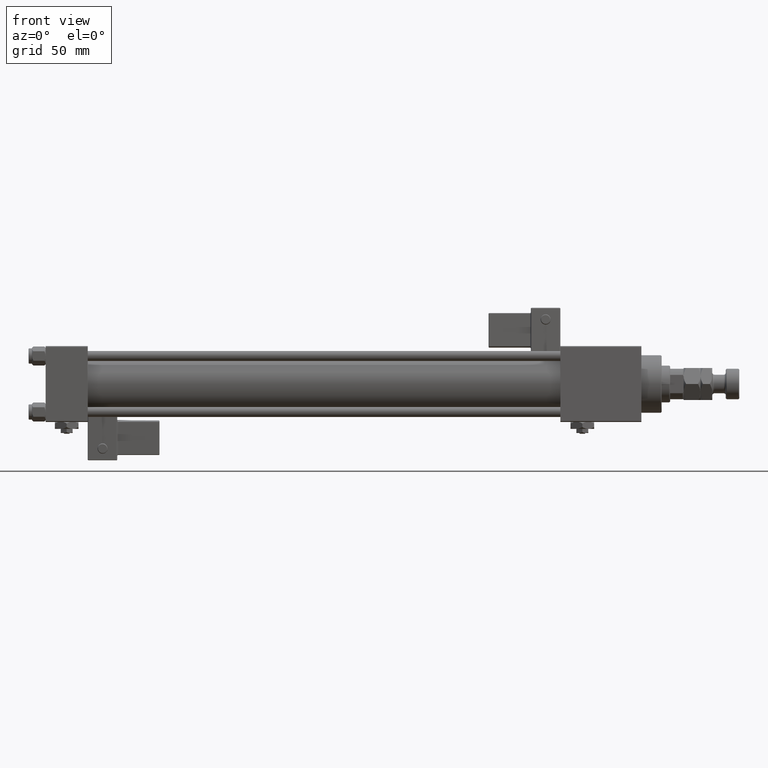
[diagram: clean part render]
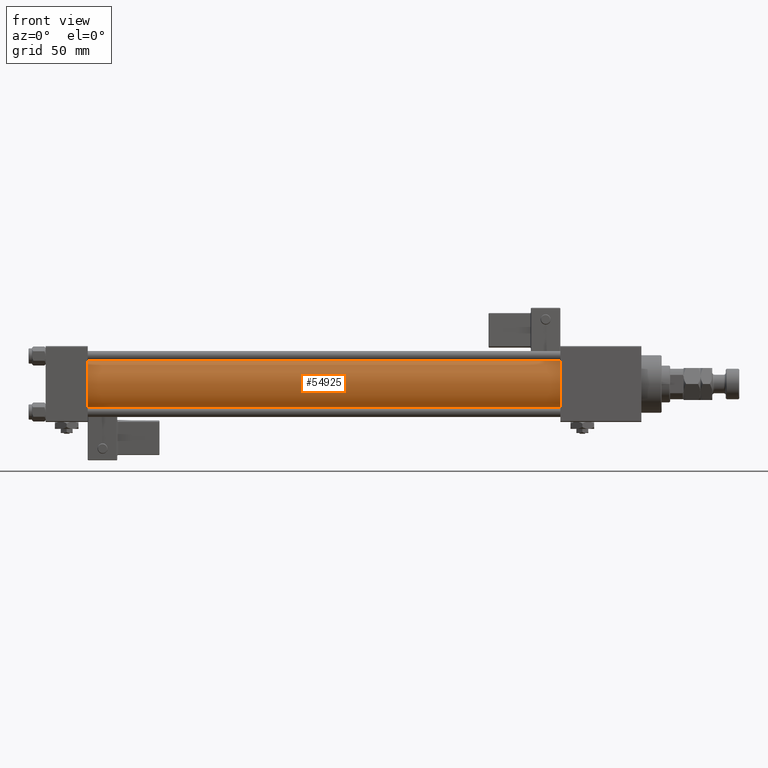
[diagram: same view with one face highlighted and labeled with its STEP entity id]
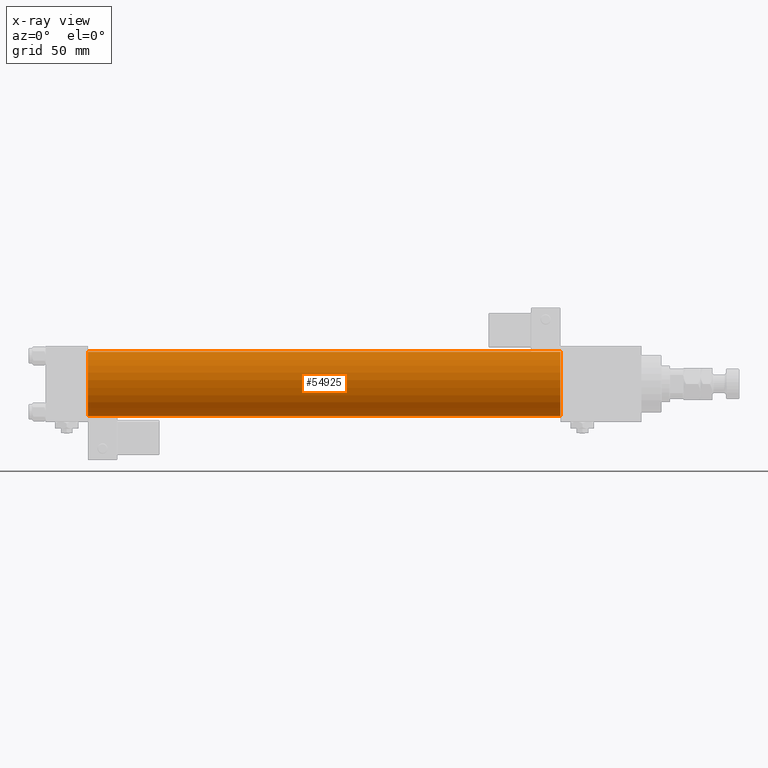
[diagram: x-ray of the same camera — body ghosted, the highlighted face saturated]
A machine part, front view. The second image highlights one B-rep face of the part: STEP entity #54925.
The next image is the same camera in x-ray: the body ghosted, the highlighted face saturated — about 0% of this face is hidden behind the body in this view.
In plain terms, the highlighted cylindrical surface (edge-blend (fillet) strip) has radius 19 mm, axis along (-1, -0, -0).
Its self-contained STEP definition (entity closure, byte-faithful):
#1734 = CIRCLE ( 'NONE', #2643, 19.00000000000000000 ) ;
#2643 = AXIS2_PLACEMENT_3D ( 'NONE', #34276, #38820, #56201 ) ;
#2871 = VECTOR ( 'NONE', #33347, 1000.000000000000000 ) ;
#3084 = CARTESIAN_POINT ( 'NONE',  ( 305.0000000000000568, -2.602085213965210642E-15, 0.000000000000000000 ) ) ;
#5228 = VERTEX_POINT ( 'NONE', #16187 ) ;
#7357 = FACE_OUTER_BOUND ( 'NONE', #54090, .T. ) ;
#9745 = LINE ( 'NONE', #18832, #32265 ) ;
#12694 = ORIENTED_EDGE ( 'NONE', *, *, #56306, .F. ) ;
#13692 = VERTEX_POINT ( 'NONE', #22161 ) ;
#14803 = AXIS2_PLACEMENT_3D ( 'NONE', #18168, #39497, #44624 ) ;
#16187 = CARTESIAN_POINT ( 'NONE',  ( 25.00000000000002132, -2.602085213965210642E-15, 19.00000000000000000 ) ) ;
#18093 = EDGE_CURVE ( 'NONE', #13692, #5228, #28526, .T. ) ;
#18168 = CARTESIAN_POINT ( 'NONE',  ( 25.00000000000002132, -2.602085213965210642E-15, 0.000000000000000000 ) ) ;
#18832 = CARTESIAN_POINT ( 'NONE',  ( 305.0000000000000568, -2.752562955852396712E-16, -19.00000000000000000 ) ) ;
#20833 = ORIENTED_EDGE ( 'NONE', *, *, #22378, .T. ) ;
#21167 = VERTEX_POINT ( 'NONE', #26484 ) ;
#22161 = CARTESIAN_POINT ( 'NONE',  ( 305.0000000000000568, -2.602085213965210642E-15, 19.00000000000000000 ) ) ;
#22378 = EDGE_CURVE ( 'NONE', #5228, #50283, #34801, .T. ) ;
#26484 = CARTESIAN_POINT ( 'NONE',  ( 305.0000000000000568, -2.752562955852396712E-16, -19.00000000000000000 ) ) ;
#28526 = LINE ( 'NONE', #45888, #2871 ) ;
#32265 = VECTOR ( 'NONE', #52991, 1000.000000000000000 ) ;
#33347 = DIRECTION ( 'NONE',  ( -1.000000000000000000, -0.000000000000000000, -0.000000000000000000 ) ) ;
#34276 = CARTESIAN_POINT ( 'NONE',  ( 305.0000000000000568, -2.602085213965210642E-15, 0.000000000000000000 ) ) ;
#34368 = AXIS2_PLACEMENT_3D ( 'NONE', #3084, #37763, #41185 ) ;
#34801 = CIRCLE ( 'NONE', #14803, 19.00000000000000000 ) ;
#37763 = DIRECTION ( 'NONE',  ( -1.000000000000000000, -0.000000000000000000, -0.000000000000000000 ) ) ;
#38820 = DIRECTION ( 'NONE',  ( 1.000000000000000000, 0.000000000000000000, 0.000000000000000000 ) ) ;
#39497 = DIRECTION ( 'NONE',  ( 1.000000000000000000, -0.000000000000000000, 0.000000000000000000 ) ) ;
#41185 = DIRECTION ( 'NONE',  ( 0.000000000000000000, 0.000000000000000000, 1.000000000000000000 ) ) ;
#44552 = EDGE_CURVE ( 'NONE', #21167, #50283, #9745, .T. ) ;
#44624 = DIRECTION ( 'NONE',  ( 0.000000000000000000, 0.000000000000000000, 1.000000000000000000 ) ) ;
#45201 = ORIENTED_EDGE ( 'NONE', *, *, #18093, .T. ) ;
#45888 = CARTESIAN_POINT ( 'NONE',  ( 305.0000000000000568, -2.602085213965210642E-15, 19.00000000000000000 ) ) ;
#46553 = ORIENTED_EDGE ( 'NONE', *, *, #44552, .F. ) ;
#50283 = VERTEX_POINT ( 'NONE', #51466 ) ;
#51466 = CARTESIAN_POINT ( 'NONE',  ( 25.00000000000002132, -2.752562955852396712E-16, -19.00000000000000000 ) ) ;
#52991 = DIRECTION ( 'NONE',  ( -1.000000000000000000, -0.000000000000000000, -0.000000000000000000 ) ) ;
#54090 = EDGE_LOOP ( 'NONE', ( #46553, #12694, #45201, #20833 ) ) ;
#54304 = CYLINDRICAL_SURFACE ( 'NONE', #34368, 19.00000000000000000 ) ;
#54925 = ADVANCED_FACE ( 'NONE', ( #7357 ), #54304, .T. ) ;
#56201 = DIRECTION ( 'NONE',  ( 0.000000000000000000, 0.000000000000000000, -1.000000000000000000 ) ) ;
#56306 = EDGE_CURVE ( 'NONE', #13692, #21167, #1734, .T. ) ;